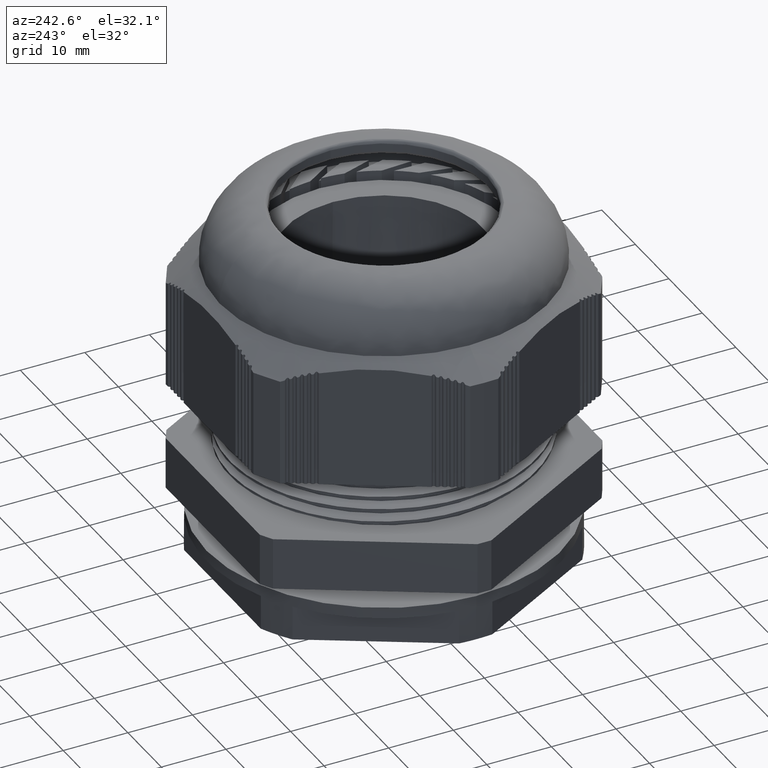
[diagram: clean part render]
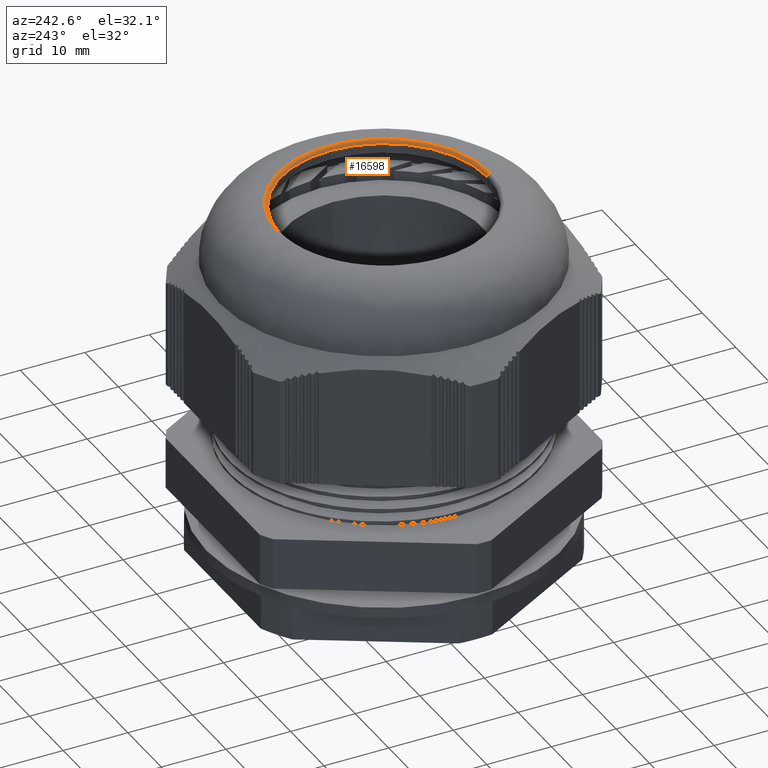
[diagram: same view with one face highlighted and labeled with its STEP entity id]
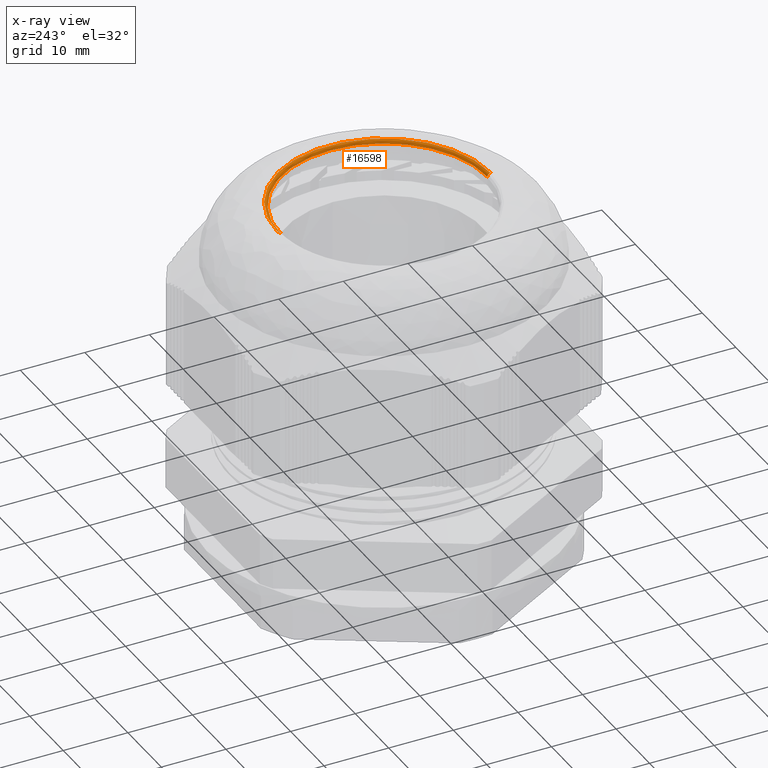
[diagram: x-ray of the same camera — body ghosted, the highlighted face saturated]
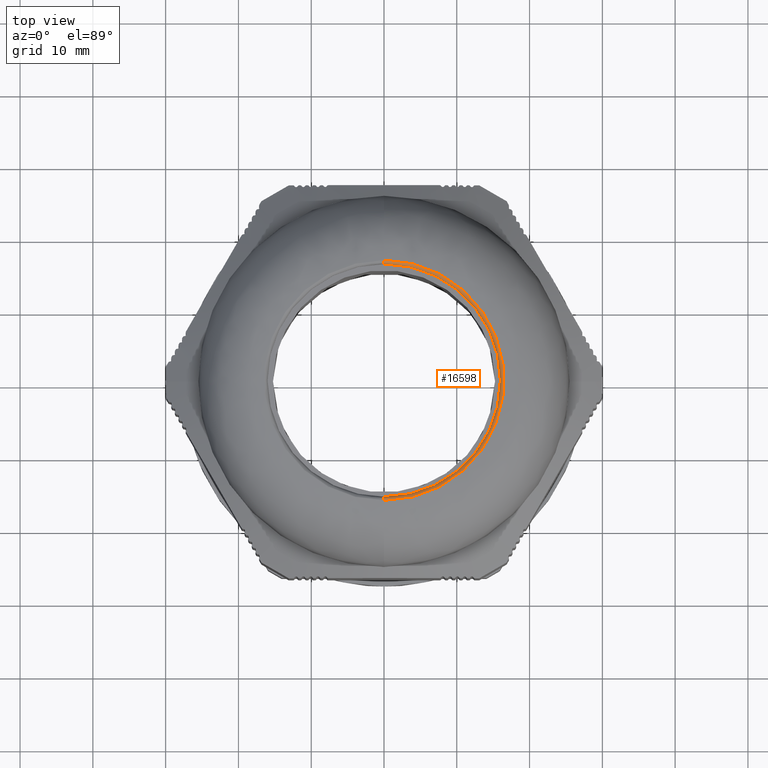
[diagram: same view with one face highlighted and labeled with its STEP entity id]
A machine part, auxiliary view. The second image highlights one B-rep face of the part: STEP entity #16598.
The next image is the same camera in x-ray: the body ghosted, the highlighted face saturated — about 0% of this face is hidden behind the body in this view.
A second angle (top view) of the same face is appended — the face is thin or edge-on in the first view.
In plain terms, the highlighted face is a freeform B-spline surface patch.
Its self-contained STEP definition (entity closure, byte-faithful):
#439 = CARTESIAN_POINT ( 'NONE',  ( 2.020667218593135900E-015, 16.50000000000002500, 58.43713426674090500 ) ) ;
#447 = DIRECTION ( 'NONE',  ( -1.000000000000000000, 1.224646799147353200E-016, -2.046447962963191400E-032 ) ) ;
#449 = DIRECTION ( 'NONE',  ( 1.224646799147354700E-016, 1.000000000000000000, 0.0000000000000000000 ) ) ;
#480 = CARTESIAN_POINT ( 'NONE',  ( -1.484386816019880400E-046, -16.50000000000002500, 58.43713426674089800 ) ) ;
#486 = DIRECTION ( 'NONE',  ( 1.000000000000000000, -1.919207196470150600E-047, 4.701977403289151100E-032 ) ) ;
#518 = DIRECTION ( 'NONE',  ( -8.996283733453877800E-048, -1.000000000000000000, 0.0000000000000000000 ) ) ;
#615 = CARTESIAN_POINT ( 'NONE',  ( 16.00000000000000000, 0.0000000000000000000, 58.43713426674090500 ) ) ;
#661 = CARTESIAN_POINT ( 'NONE',  ( 2.571758278209440900E-015, 16.50000000000000000, 58.93713426674092700 ) ) ;
#669 = CARTESIAN_POINT ( 'NONE',  ( 1.990051048614449300E-015, 16.00000000000000000, 58.43713426674090500 ) ) ;
#674 = CARTESIAN_POINT ( 'NONE',  ( -1.175494350822331300E-032, -16.00000000000000000, 58.43713426674090500 ) ) ;
#697 = CARTESIAN_POINT ( 'NONE',  ( -2.350988701644649500E-032, -16.50000000000000000, 58.93713426674091200 ) ) ;
#4143 = CARTESIAN_POINT ( 'NONE',  ( 0.0000000000000000000, 0.0000000000000000000, 58.43713426674090500 ) ) ;
#4147 = DIRECTION ( 'NONE',  ( -0.0000000000000000000, -0.0000000000000000000, -1.000000000000000000 ) ) ;
#4165 = DIRECTION ( 'NONE',  ( 1.000000000000000000, 0.0000000000000000000, 0.0000000000000000000 ) ) ;
#4195 = DIRECTION ( 'NONE',  ( -4.701977403289151100E-032, -2.168404344971009400E-016, 1.000000000000000000 ) ) ;
#4203 = CARTESIAN_POINT ( 'NONE',  ( -2.350988701644627000E-032, -1.088137656566435400E-015, 58.93713426674091900 ) ) ;
#4221 = DIRECTION ( 'NONE',  ( -1.360680216046936000E-047, -1.000000000000000000, -4.205390244792259800E-016 ) ) ;
#4698 = CARTESIAN_POINT ( 'NONE',  ( 32.00000000000001400, 16.00000000000000700, 58.73002748555433800 ) ) ;
#4699 = CARTESIAN_POINT ( 'NONE',  ( -3.547950422779975900E-032, -16.20710678118655000, 58.93713426674088400 ) ) ;
#4705 = CARTESIAN_POINT ( 'NONE',  ( 32.00000000000001400, -16.00000000000001100, 58.73002748555433800 ) ) ;
#4707 = CARTESIAN_POINT ( 'NONE',  ( -3.569581795734702800E-032, -16.50000000000000000, 58.93713426674091200 ) ) ;
#4713 = CARTESIAN_POINT ( 'NONE',  ( 1.959434878635766700E-015, 16.00000000000001100, 58.73002748555434500 ) ) ;
#4719 = CARTESIAN_POINT ( 'NONE',  ( -1.181666030632761900E-032, -16.00000000000001400, 58.43713426674089100 ) ) ;
#4729 = CARTESIAN_POINT ( 'NONE',  ( 32.41421356237309200, -16.20710678118654600, 58.93713426674089100 ) ) ;
#4730 = FACE_OUTER_BOUND ( 'NONE', #10246, .T. ) ;
#4731 = CARTESIAN_POINT ( 'NONE',  ( 1.959434878635767100E-015, 16.00000000000001400, 58.43713426674089800 ) ) ;
#4734 = CARTESIAN_POINT ( 'NONE',  ( 32.00000000000002100, -16.00000000000001400, 58.43713426674088400 ) ) ;
#4736 = CARTESIAN_POINT ( 'NONE',  ( 32.99999999999999300, -16.50000000000000000, 58.93713426674091200 ) ) ;
#4737 = CARTESIAN_POINT ( 'NONE',  ( 2.020667218593133100E-015, 16.50000000000000000, 58.93713426674091900 ) ) ;
#4742 = CARTESIAN_POINT ( 'NONE',  ( 32.99999999999999300, 16.49999999999999600, 58.93713426674091200 ) ) ;
#4743 = CARTESIAN_POINT ( 'NONE',  ( 1.984798144301947000E-015, 16.20710678118655000, 58.93713426674090500 ) ) ;
#4745 = CARTESIAN_POINT ( 'NONE',  ( 32.41421356237309200, 16.20710678118654600, 58.93713426674089100 ) ) ;
#4748 = CARTESIAN_POINT ( 'NONE',  ( 32.00000000000002100, 16.00000000000001100, 58.43713426674089800 ) ) ;
#4749 = CARTESIAN_POINT ( 'NONE',  ( -2.558843327070236400E-032, -16.00000000000001100, 58.73002748555433800 ) ) ;
#9082 = CIRCLE ( 'NONE', #9084, 16.00000000000000000 ) ;
#9084 = AXIS2_PLACEMENT_3D ( 'NONE', #22829, #22871, #22832 ) ;
#9224 = AXIS2_PLACEMENT_3D ( 'NONE', #480, #486, #518 ) ;
#9234 = AXIS2_PLACEMENT_3D ( 'NONE', #439, #447, #449 ) ;
#9252 = CIRCLE ( 'NONE', #9224, 0.5000000000000108800 ) ;
#9266 = CIRCLE ( 'NONE', #9234, 0.5000000000000108800 ) ;
#9508 = AXIS2_PLACEMENT_3D ( 'NONE', #4143, #4147, #4165 ) ;
#9514 = CIRCLE ( 'NONE', #9508, 16.00000000000000000 ) ;
#9531 = CIRCLE ( 'NONE', #9571, 16.50000000000000000 ) ;
#9571 = AXIS2_PLACEMENT_3D ( 'NONE', #4203, #4195, #4221 ) ;
#9726 = EDGE_CURVE ( 'NONE', #10488, #10528, #9082, .T. ) ;
#9935 = EDGE_CURVE ( 'NONE', #10530, #10483, #9266, .T. ) ;
#9940 = EDGE_CURVE ( 'NONE', #10528, #10506, #9252, .T. ) ;
#10246 = EDGE_LOOP ( 'NONE', ( #18976, #18900, #18920, #18922, #18928 ) ) ;
#10483 = VERTEX_POINT ( 'NONE', #661 ) ;
#10488 = VERTEX_POINT ( 'NONE', #615 ) ;
#10506 = VERTEX_POINT ( 'NONE', #697 ) ;
#10528 = VERTEX_POINT ( 'NONE', #674 ) ;
#10530 = VERTEX_POINT ( 'NONE', #669 ) ;
#11690 =( BOUNDED_SURFACE ( )  B_SPLINE_SURFACE ( 3, 3, ( 
 ( #4719, #4734, #4748, #4731 ),
 ( #4749, #4705, #4698, #4713 ),
 ( #4699, #4729, #4745, #4743 ),
 ( #4707, #4736, #4742, #4737 ) ),
 .UNSPECIFIED., .F., .F., .F. ) 
 B_SPLINE_SURFACE_WITH_KNOTS ( ( 4, 4 ),
 ( 4, 4 ),
 ( 0.0000000000000000000, 1.000000000000000000 ),
 ( 0.0000000000000000000, 1.000000000000000000 ),
 .UNSPECIFIED. ) 
 GEOMETRIC_REPRESENTATION_ITEM ( )  RATIONAL_B_SPLINE_SURFACE ( (
 ( 1.000000000000000000, 0.3333333333333334300, 0.3333333333333334300, 1.000000000000000000),
 ( 0.8047378541243732600, 0.2682459513747911800, 0.2682459513747911800, 0.8047378541243732600),
 ( 0.8047378541243732600, 0.2682459513747911800, 0.2682459513747911800, 0.8047378541243732600),
 ( 1.000000000000000000, 0.3333333333333334300, 0.3333333333333334300, 1.000000000000000000) ) ) 
 REPRESENTATION_ITEM ( '' )  SURFACE ( )  );
#16553 = EDGE_CURVE ( 'NONE', #10530, #10488, #9514, .T. ) ;
#16561 = EDGE_CURVE ( 'NONE', #10506, #10483, #9531, .T. ) ;
#16598 = ADVANCED_FACE ( 'NONE', ( #4730 ), #11690, .T. ) ;
#18900 = ORIENTED_EDGE ( 'NONE', *, *, #16553, .T. ) ;
#18920 = ORIENTED_EDGE ( 'NONE', *, *, #9726, .T. ) ;
#18922 = ORIENTED_EDGE ( 'NONE', *, *, #9940, .T. ) ;
#18928 = ORIENTED_EDGE ( 'NONE', *, *, #16561, .T. ) ;
#18976 = ORIENTED_EDGE ( 'NONE', *, *, #9935, .F. ) ;
#22829 = CARTESIAN_POINT ( 'NONE',  ( 0.0000000000000000000, 0.0000000000000000000, 58.43713426674090500 ) ) ;
#22832 = DIRECTION ( 'NONE',  ( 1.000000000000000000, 0.0000000000000000000, 0.0000000000000000000 ) ) ;
#22871 = DIRECTION ( 'NONE',  ( -0.0000000000000000000, -0.0000000000000000000, -1.000000000000000000 ) ) ;